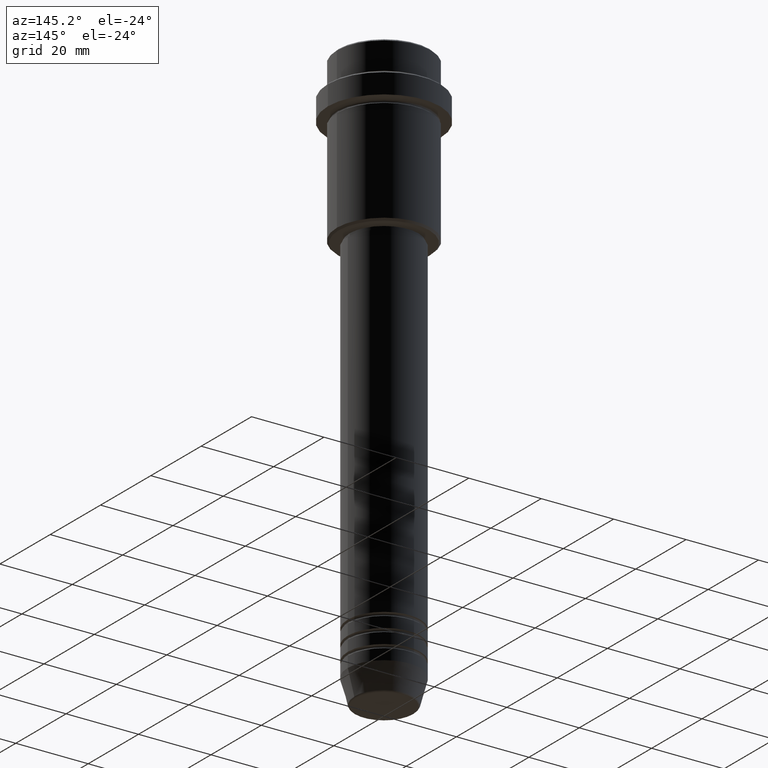
[diagram: clean part render]
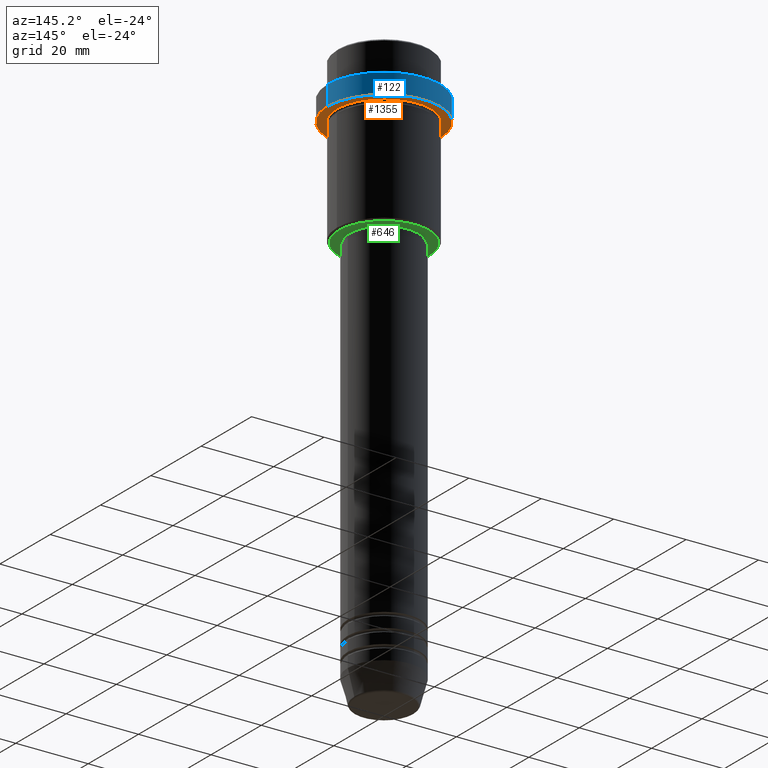
[diagram: same view with three faces highlighted in distinct colors, each labeled with its STEP entity id]
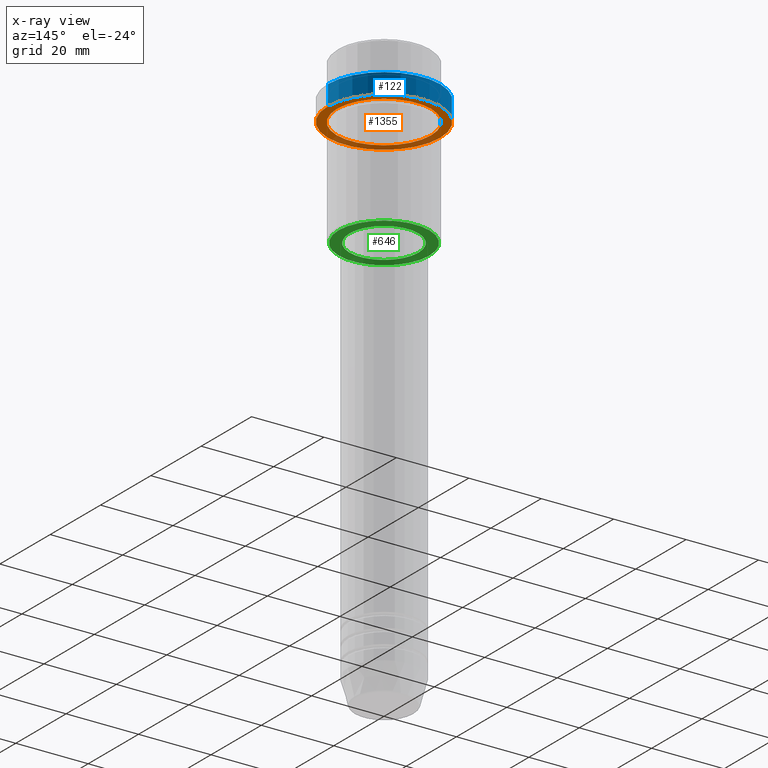
[diagram: x-ray of the same camera — body ghosted, the three highlighted faces saturated]
A machine part, auxiliary view with three faces highlighted in distinct colors.
The next image is the same camera in x-ray (body ghosted, the three faces saturated) — at least one of them is partly hidden behind the body in this view.
Their STEP definitions:

[orange] entity #1355 — the highlighted planar face has unit normal (0, 0, -1).
#3 = CARTESIAN_POINT ( 'NONE',  ( 0.000000000000000000, 0.000000000000000000, -15.00000000000000000 ) ) ;
#71 = FACE_BOUND ( 'NONE', #297, .T. ) ;
#85 = DIRECTION ( 'NONE',  ( -0.000000000000000000, -0.000000000000000000, 1.000000000000000000 ) ) ;
#127 = CARTESIAN_POINT ( 'NONE',  ( 0.000000000000000000, 0.000000000000000000, -15.00000000000000000 ) ) ;
#148 = CIRCLE ( 'NONE', #1157, 12.99999999999999645 ) ;
#177 = CARTESIAN_POINT ( 'NONE',  ( 0.000000000000000000, 0.000000000000000000, -15.00000000000000000 ) ) ;
#285 = DIRECTION ( 'NONE',  ( 0.000000000000000000, 0.000000000000000000, -1.000000000000000000 ) ) ;
#297 = EDGE_LOOP ( 'NONE', ( #1047, #388 ) ) ;
#327 = DIRECTION ( 'NONE',  ( -1.000000000000000000, 0.000000000000000000, 0.000000000000000000 ) ) ;
#339 = DIRECTION ( 'NONE',  ( -1.000000000000000000, 0.000000000000000000, 0.000000000000000000 ) ) ;
#347 = DIRECTION ( 'NONE',  ( 1.000000000000000000, 0.000000000000000000, 0.000000000000000000 ) ) ;
#348 = CARTESIAN_POINT ( 'NONE',  ( 15.50000000000000000, 0.000000000000000000, -15.00000000000000000 ) ) ;
#374 = DIRECTION ( 'NONE',  ( -1.000000000000000000, 0.000000000000000000, -0.000000000000000000 ) ) ;
#388 = ORIENTED_EDGE ( 'NONE', *, *, #1217, .T. ) ;
#392 = FACE_OUTER_BOUND ( 'NONE', #889, .T. ) ;
#448 = VERTEX_POINT ( 'NONE', #1259 ) ;
#497 = ORIENTED_EDGE ( 'NONE', *, *, #1403, .F. ) ;
#563 = CARTESIAN_POINT ( 'NONE',  ( 12.99999999999999645, 1.592040838891558701E-15, -15.00000000000000000 ) ) ;
#687 = PLANE ( 'NONE',  #923 ) ;
#712 = VERTEX_POINT ( 'NONE', #348 ) ;
#779 = VERTEX_POINT ( 'NONE', #563 ) ;
#812 = AXIS2_PLACEMENT_3D ( 'NONE', #127, #1324, #339 ) ;
#836 = CIRCLE ( 'NONE', #812, 12.99999999999999645 ) ;
#889 = EDGE_LOOP ( 'NONE', ( #497, #1248 ) ) ;
#904 = DIRECTION ( 'NONE',  ( -0.000000000000000000, -0.000000000000000000, 1.000000000000000000 ) ) ;
#923 = AXIS2_PLACEMENT_3D ( 'NONE', #1136, #285, #374 ) ;
#1016 = EDGE_CURVE ( 'NONE', #448, #779, #148, .T. ) ;
#1030 = CARTESIAN_POINT ( 'NONE',  ( -15.50000000000000000, 1.898202538678397557E-15, -15.00000000000000000 ) ) ;
#1041 = CIRCLE ( 'NONE', #1272, 15.50000000000000000 ) ;
#1047 = ORIENTED_EDGE ( 'NONE', *, *, #1016, .T. ) ;
#1061 = DIRECTION ( 'NONE',  ( -0.000000000000000000, -0.000000000000000000, 1.000000000000000000 ) ) ;
#1110 = EDGE_CURVE ( 'NONE', #1309, #712, #1041, .T. ) ;
#1136 = CARTESIAN_POINT ( 'NONE',  ( 0.000000000000000000, 15.50000000000000000, -15.00000000000000000 ) ) ;
#1157 = AXIS2_PLACEMENT_3D ( 'NONE', #3, #85, #327 ) ;
#1217 = EDGE_CURVE ( 'NONE', #779, #448, #836, .T. ) ;
#1225 = CIRCLE ( 'NONE', #1277, 15.50000000000000000 ) ;
#1248 = ORIENTED_EDGE ( 'NONE', *, *, #1110, .F. ) ;
#1259 = CARTESIAN_POINT ( 'NONE',  ( -12.99999999999999645, 0.000000000000000000, -15.00000000000000000 ) ) ;
#1272 = AXIS2_PLACEMENT_3D ( 'NONE', #1315, #904, #347 ) ;
#1277 = AXIS2_PLACEMENT_3D ( 'NONE', #177, #1061, #1292 ) ;
#1292 = DIRECTION ( 'NONE',  ( 1.000000000000000000, 0.000000000000000000, 0.000000000000000000 ) ) ;
#1309 = VERTEX_POINT ( 'NONE', #1030 ) ;
#1315 = CARTESIAN_POINT ( 'NONE',  ( 0.000000000000000000, 0.000000000000000000, -15.00000000000000000 ) ) ;
#1324 = DIRECTION ( 'NONE',  ( -0.000000000000000000, -0.000000000000000000, 1.000000000000000000 ) ) ;
#1355 = ADVANCED_FACE ( 'NONE', ( #71, #392 ), #687, .T. ) ;
#1403 = EDGE_CURVE ( 'NONE', #712, #1309, #1225, .T. ) ;

[blue] entity #122 — the highlighted cylindrical surface (partial cylindrical patch) has radius 15.5 mm, axis along (-0, -0, 1).
#2 = ORIENTED_EDGE ( 'NONE', *, *, #1403, .T. ) ;
#28 = ORIENTED_EDGE ( 'NONE', *, *, #1374, .T. ) ;
#103 = CARTESIAN_POINT ( 'NONE',  ( 15.50000000000000000, 0.000000000000000000, 0.000000000000000000 ) ) ;
#122 = ADVANCED_FACE ( 'NONE', ( #322 ), #425, .T. ) ;
#160 = DIRECTION ( 'NONE',  ( 0.000000000000000000, 0.000000000000000000, -1.000000000000000000 ) ) ;
#177 = CARTESIAN_POINT ( 'NONE',  ( 0.000000000000000000, 0.000000000000000000, -15.00000000000000000 ) ) ;
#253 = CARTESIAN_POINT ( 'NONE',  ( -15.50000000000000000, 1.898202538678397557E-15, 0.000000000000000000 ) ) ;
#260 = VERTEX_POINT ( 'NONE', #1115 ) ;
#322 = FACE_OUTER_BOUND ( 'NONE', #1031, .T. ) ;
#348 = CARTESIAN_POINT ( 'NONE',  ( 15.50000000000000000, 0.000000000000000000, -15.00000000000000000 ) ) ;
#360 = VECTOR ( 'NONE', #776, 1000.000000000000000 ) ;
#425 = CYLINDRICAL_SURFACE ( 'NONE', #900, 15.50000000000000000 ) ;
#489 = AXIS2_PLACEMENT_3D ( 'NONE', #1144, #160, #586 ) ;
#524 = DIRECTION ( 'NONE',  ( 1.000000000000000000, 0.000000000000000000, 0.000000000000000000 ) ) ;
#577 = LINE ( 'NONE', #253, #360 ) ;
#586 = DIRECTION ( 'NONE',  ( 1.000000000000000000, 0.000000000000000000, 0.000000000000000000 ) ) ;
#712 = VERTEX_POINT ( 'NONE', #348 ) ;
#729 = DIRECTION ( 'NONE',  ( -0.000000000000000000, -0.000000000000000000, 1.000000000000000000 ) ) ;
#743 = EDGE_CURVE ( 'NONE', #1309, #1408, #577, .T. ) ;
#747 = LINE ( 'NONE', #103, #947 ) ;
#749 = DIRECTION ( 'NONE',  ( -0.000000000000000000, -0.000000000000000000, 1.000000000000000000 ) ) ;
#776 = DIRECTION ( 'NONE',  ( -0.000000000000000000, -0.000000000000000000, 1.000000000000000000 ) ) ;
#900 = AXIS2_PLACEMENT_3D ( 'NONE', #1191, #749, #524 ) ;
#947 = VECTOR ( 'NONE', #729, 1000.000000000000000 ) ;
#1014 = ORIENTED_EDGE ( 'NONE', *, *, #1095, .F. ) ;
#1030 = CARTESIAN_POINT ( 'NONE',  ( -15.50000000000000000, 1.898202538678397557E-15, -15.00000000000000000 ) ) ;
#1031 = EDGE_LOOP ( 'NONE', ( #2, #1141, #28, #1014 ) ) ;
#1061 = DIRECTION ( 'NONE',  ( -0.000000000000000000, -0.000000000000000000, 1.000000000000000000 ) ) ;
#1088 = CARTESIAN_POINT ( 'NONE',  ( -15.50000000000000000, 1.898202538678397557E-15, -9.500000000000026645 ) ) ;
#1095 = EDGE_CURVE ( 'NONE', #712, #260, #747, .T. ) ;
#1115 = CARTESIAN_POINT ( 'NONE',  ( 15.50000000000000000, 0.000000000000000000, -9.500000000000026645 ) ) ;
#1116 = CIRCLE ( 'NONE', #489, 15.50000000000000000 ) ;
#1141 = ORIENTED_EDGE ( 'NONE', *, *, #743, .T. ) ;
#1144 = CARTESIAN_POINT ( 'NONE',  ( 0.000000000000000000, 0.000000000000000000, -9.500000000000026645 ) ) ;
#1191 = CARTESIAN_POINT ( 'NONE',  ( 0.000000000000000000, 0.000000000000000000, 0.000000000000000000 ) ) ;
#1225 = CIRCLE ( 'NONE', #1277, 15.50000000000000000 ) ;
#1277 = AXIS2_PLACEMENT_3D ( 'NONE', #177, #1061, #1292 ) ;
#1292 = DIRECTION ( 'NONE',  ( 1.000000000000000000, 0.000000000000000000, 0.000000000000000000 ) ) ;
#1309 = VERTEX_POINT ( 'NONE', #1030 ) ;
#1374 = EDGE_CURVE ( 'NONE', #1408, #260, #1116, .T. ) ;
#1403 = EDGE_CURVE ( 'NONE', #712, #1309, #1225, .T. ) ;
#1408 = VERTEX_POINT ( 'NONE', #1088 ) ;

[green] entity #646 — the highlighted planar face has unit normal (0, 0, -1).
#84 = VERTEX_POINT ( 'NONE', #1280 ) ;
#100 = CARTESIAN_POINT ( 'NONE',  ( 12.49999999999996980, 0.000000000000000000, -44.99999999999998579 ) ) ;
#128 = EDGE_LOOP ( 'NONE', ( #1000, #161 ) ) ;
#132 = AXIS2_PLACEMENT_3D ( 'NONE', #1237, #477, #1262 ) ;
#161 = ORIENTED_EDGE ( 'NONE', *, *, #349, .T. ) ;
#175 = CIRCLE ( 'NONE', #974, 9.499999999999996447 ) ;
#270 = VERTEX_POINT ( 'NONE', #660 ) ;
#294 = AXIS2_PLACEMENT_3D ( 'NONE', #821, #1253, #395 ) ;
#329 = FACE_BOUND ( 'NONE', #128, .T. ) ;
#349 = EDGE_CURVE ( 'NONE', #84, #270, #175, .T. ) ;
#371 = CARTESIAN_POINT ( 'NONE',  ( 0.000000000000000000, 0.000000000000000000, -44.99999999999998579 ) ) ;
#395 = DIRECTION ( 'NONE',  ( -1.000000000000000000, 0.000000000000000000, 0.000000000000000000 ) ) ;
#402 = CIRCLE ( 'NONE', #969, 12.49999999999996980 ) ;
#410 = EDGE_CURVE ( 'NONE', #548, #685, #903, .T. ) ;
#417 = CARTESIAN_POINT ( 'NONE',  ( 0.000000000000000000, 13.00000000000000000, -44.99999999999998579 ) ) ;
#468 = CIRCLE ( 'NONE', #132, 9.499999999999996447 ) ;
#470 = DIRECTION ( 'NONE',  ( -0.000000000000000000, -0.000000000000000000, 1.000000000000000000 ) ) ;
#477 = DIRECTION ( 'NONE',  ( -0.000000000000000000, -0.000000000000000000, 1.000000000000000000 ) ) ;
#543 = ORIENTED_EDGE ( 'NONE', *, *, #410, .T. ) ;
#548 = VERTEX_POINT ( 'NONE', #100 ) ;
#596 = EDGE_CURVE ( 'NONE', #685, #548, #402, .T. ) ;
#622 = CARTESIAN_POINT ( 'NONE',  ( 0.000000000000000000, 0.000000000000000000, -44.99999999999998579 ) ) ;
#632 = DIRECTION ( 'NONE',  ( -1.000000000000000000, 0.000000000000000000, 0.000000000000000000 ) ) ;
#646 = ADVANCED_FACE ( 'NONE', ( #1397, #329 ), #755, .T. ) ;
#660 = CARTESIAN_POINT ( 'NONE',  ( 9.499999999999996447, 0.000000000000000000, -44.99999999999998579 ) ) ;
#685 = VERTEX_POINT ( 'NONE', #1215 ) ;
#755 = PLANE ( 'NONE',  #1201 ) ;
#777 = DIRECTION ( 'NONE',  ( 1.000000000000000000, 0.000000000000000000, 0.000000000000000000 ) ) ;
#821 = CARTESIAN_POINT ( 'NONE',  ( 0.000000000000000000, 0.000000000000000000, -44.99999999999998579 ) ) ;
#852 = DIRECTION ( 'NONE',  ( -1.000000000000000000, 0.000000000000000000, -0.000000000000000000 ) ) ;
#903 = CIRCLE ( 'NONE', #294, 12.49999999999996980 ) ;
#969 = AXIS2_PLACEMENT_3D ( 'NONE', #622, #1076, #632 ) ;
#974 = AXIS2_PLACEMENT_3D ( 'NONE', #371, #470, #777 ) ;
#1000 = ORIENTED_EDGE ( 'NONE', *, *, #1347, .T. ) ;
#1059 = EDGE_LOOP ( 'NONE', ( #543, #1193 ) ) ;
#1076 = DIRECTION ( 'NONE',  ( 0.000000000000000000, 0.000000000000000000, -1.000000000000000000 ) ) ;
#1193 = ORIENTED_EDGE ( 'NONE', *, *, #596, .T. ) ;
#1201 = AXIS2_PLACEMENT_3D ( 'NONE', #417, #1300, #852 ) ;
#1215 = CARTESIAN_POINT ( 'NONE',  ( -12.49999999999996980, 1.561424668912873336E-15, -44.99999999999998579 ) ) ;
#1237 = CARTESIAN_POINT ( 'NONE',  ( 0.000000000000000000, 0.000000000000000000, -44.99999999999998579 ) ) ;
#1253 = DIRECTION ( 'NONE',  ( 0.000000000000000000, 0.000000000000000000, -1.000000000000000000 ) ) ;
#1262 = DIRECTION ( 'NONE',  ( 1.000000000000000000, 0.000000000000000000, 0.000000000000000000 ) ) ;
#1280 = CARTESIAN_POINT ( 'NONE',  ( -9.499999999999996447, 1.163414459189985091E-15, -44.99999999999998579 ) ) ;
#1300 = DIRECTION ( 'NONE',  ( 0.000000000000000000, 0.000000000000000000, -1.000000000000000000 ) ) ;
#1347 = EDGE_CURVE ( 'NONE', #270, #84, #468, .T. ) ;
#1397 = FACE_OUTER_BOUND ( 'NONE', #1059, .T. ) ;